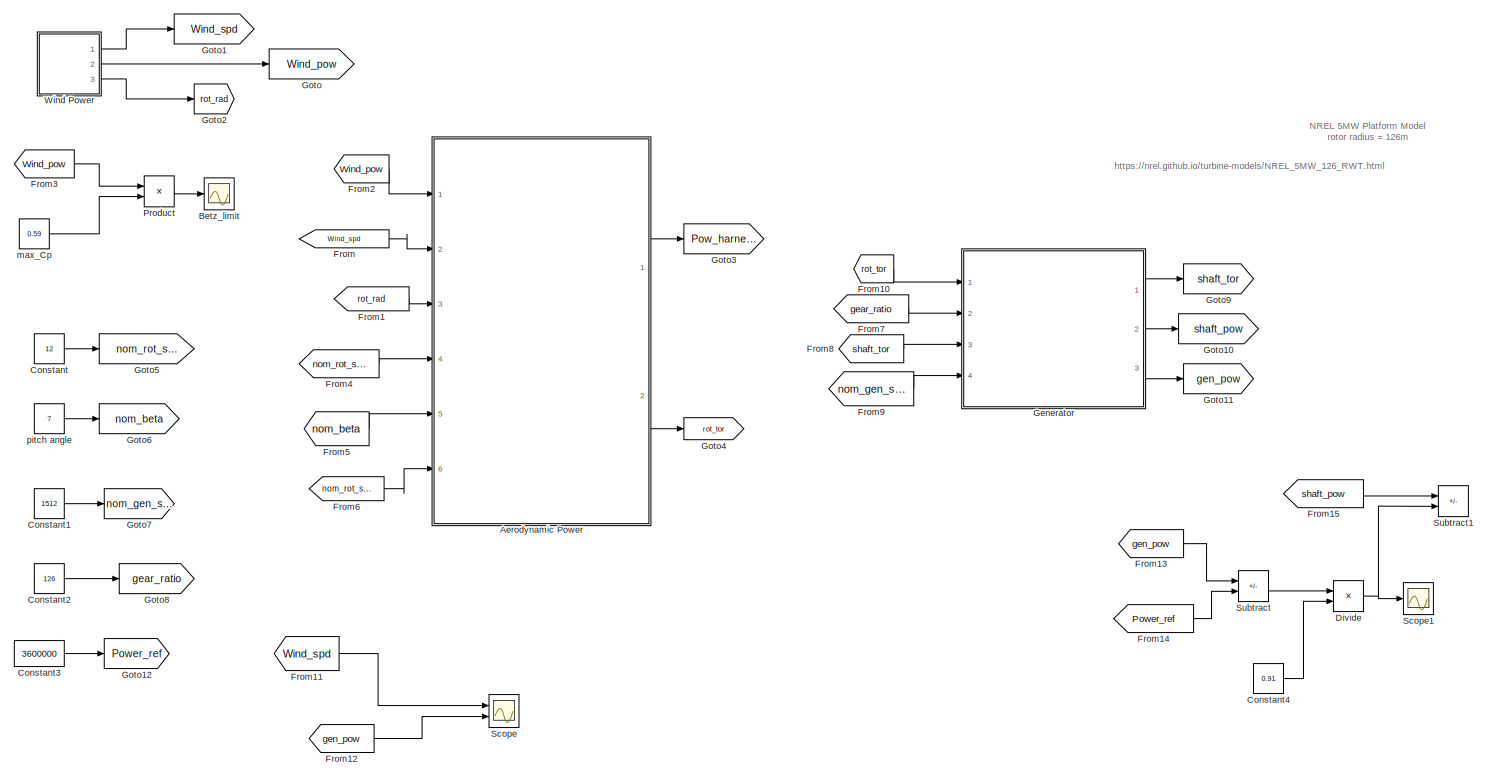
[diagram: root canvas - part 1/1, most of the canvas]
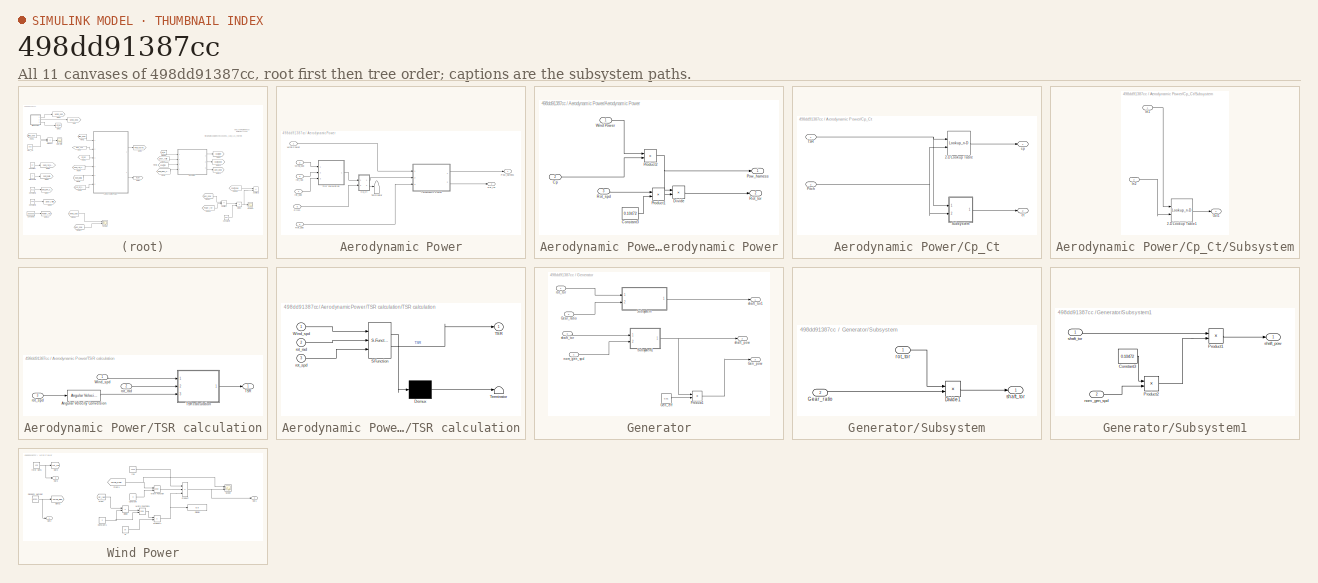
[diagram: thumbnail index - all 11 canvases of the model, root first then tree order]
MODEL slx_498dd91387cc
KIND model
CONFIG AbsTol = auto
CONFIG EnableMultiTasking = off
CONFIG FixedStep = auto
CONFIG MaxStep = auto
CONFIG MinStep = auto
CONFIG RelTol = 1e-3
CONFIG SampleTimeConstraint = Unconstrained
CONFIG SolverName = VariableStepAuto
CONFIG StartTime = 0.0
CONFIG StopTime = 10.0
BLOCK [SubSystem] Aerodynamic Power
  Ports = [6, 2]
  RequestExecContextInheritance = off
BLOCK [SubSystem] Aerodynamic Power/Aerodynamic Power
  Ports = [3, 2]
  RequestExecContextInheritance = off
BLOCK [Constant] Aerodynamic Power/Aerodynamic Power/Constant3
  Value = 0.10472
BLOCK [Inport] Aerodynamic Power/Aerodynamic Power/Cp
  Port = 2
BLOCK [Product] Aerodynamic Power/Aerodynamic Power/Divide
  Inputs = */
  Ports = [2, 1]
BLOCK [Outport] Aerodynamic Power/Aerodynamic Power/Pow_harness
BLOCK [Product] Aerodynamic Power/Aerodynamic Power/Product1
  Ports = [2, 1]
BLOCK [Product] Aerodynamic Power/Aerodynamic Power/Product2
  Ports = [2, 1]
BLOCK [Inport] Aerodynamic Power/Aerodynamic Power/Rot_spd
  Port = 3
BLOCK [Outport] Aerodynamic Power/Aerodynamic Power/Rot_tor
  Port = 2
BLOCK [Inport] Aerodynamic Power/Aerodynamic Power/Wind Power
BLOCK [SubSystem] Aerodynamic Power/Cp_Ct
  Ports = [2, 2]
  RequestExecContextInheritance = off
BLOCK [Lookup_n-D] Aerodynamic Power/Cp_Ct/2-D Lookup Table
  BreakpointsForDimension1 = cCpTabPitchPosBinsV126
  BreakpointsForDimension2 = cCpTabLambdaBinsV126
  InputPortMap = u0,u1
  Ports = [2, 1]
  RndMeth = Simplest
  Table = cCpTabCpDataV126
BLOCK [Inport] Aerodynamic Power/Cp_Ct/Pitch
  Port = 2
BLOCK [SubSystem] Aerodynamic Power/Cp_Ct/Subsystem
  Ports = [2, 1]
  RequestExecContextInheritance = off
BLOCK [Lookup_n-D] Aerodynamic Power/Cp_Ct/Subsystem/2-D Lookup Table1
  BreakpointsForDimension1 = cCtTabPitchPosBinsV126
  BreakpointsForDimension2 = cCtTabLambdaBinsV126
  InputPortMap = u0,u1
  Ports = [2, 1]
  RndMeth = Simplest
  Table = cCtTabCpDataV126
BLOCK [Inport] Aerodynamic Power/Cp_Ct/Subsystem/In1
BLOCK [Inport] Aerodynamic Power/Cp_Ct/Subsystem/In2
  Port = 2
BLOCK [Outport] Aerodynamic Power/Cp_Ct/Subsystem/Out1
BLOCK [Inport] Aerodynamic Power/Cp_Ct/TSR
BLOCK [Outport] Aerodynamic Power/Cp_Ct/cp
BLOCK [Outport] Aerodynamic Power/Cp_Ct/ct
  Port = 2
BLOCK [Inport] Aerodynamic Power/Pitch
  Port = 5
BLOCK [Outport] Aerodynamic Power/Pow_harness
BLOCK [Inport] Aerodynamic Power/Rot_spd
  Port = 6
BLOCK [Outport] Aerodynamic Power/Rot_tor
  Port = 2
BLOCK [SubSystem] Aerodynamic Power/TSR calculation
  Ports = [3, 1]
  RequestExecContextInheritance = off
BLOCK [Reference] Aerodynamic Power/TSR calculation/Angular Velocity Conversion  REF=aerolibconvert2/Angular Velocity
Conversion
  Ports = [1, 1]
  SourceBlock = aerolibconvert2/Angular Velocity\nConversion
  SourceProductBaseCode = AE
  SourceType = Angular Velocity Conversion
BLOCK [Outport] Aerodynamic Power/TSR calculation/TSR
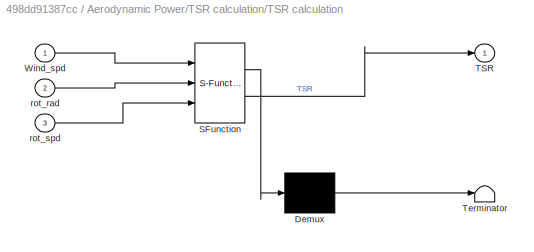
BLOCK [SubSystem] Aerodynamic Power/TSR calculation/TSR calculation
  ErrorFcn = Stateflow.Translate.translate
  PermitHierarchicalResolution = ExplicitOnly
  Ports = [3, 1]
  RequestExecContextInheritance = off
  SFBlockType = MATLAB Function
  TreatAsAtomicUnit = on
BLOCK [Demux] Aerodynamic Power/TSR calculation/TSR calculation/ Demux 
  Outputs = 1
  Ports = [1, 1]
BLOCK [S-Function] Aerodynamic Power/TSR calculation/TSR calculation/ SFunction 
  EnableBusSupport = on
  FunctionName = sf_sfun
  PortCounts = [3 2]
  Ports = [3, 2]
  SFcnIsStateOwnerBlock = off
  SFunctionDeploymentMode = off
  Tag = Stateflow S-Function 2
BLOCK [Terminator] Aerodynamic Power/TSR calculation/TSR calculation/ Terminator 
BLOCK [Outport] Aerodynamic Power/TSR calculation/TSR calculation/TSR
BLOCK [Inport] Aerodynamic Power/TSR calculation/TSR calculation/Wind_spd
BLOCK [Inport] Aerodynamic Power/TSR calculation/TSR calculation/rot_rad
  Port = 2
BLOCK [Inport] Aerodynamic Power/TSR calculation/TSR calculation/rot_spd
  Port = 3
BLOCK [Inport] Aerodynamic Power/TSR calculation/Wind_spd
BLOCK [Inport] Aerodynamic Power/TSR calculation/rot_rad
  Port = 2
BLOCK [Inport] Aerodynamic Power/TSR calculation/rot_spd
  Port = 3
BLOCK [Terminator] Aerodynamic Power/Terminator
BLOCK [Inport] Aerodynamic Power/Wind Power
BLOCK [Inport] Aerodynamic Power/Wind_spd
  Port = 2
BLOCK [Inport] Aerodynamic Power/rot_rad
  Port = 3
BLOCK [Inport] Aerodynamic Power/rot_spd
  Port = 4
BLOCK [Scope] Betz_limit
  Floating = off
  NumInputPorts = 1
  Ports = [1]
  ScopeSpecificationString = Simulink.scopes.TimeScopeBlockCfg('CurrentConfiguration', extmgr.ConfigurationSet(extmgr.Configuration('Core','General UI',true),extmgr.Configuration('Core','Source UI',true),extmgr.Configuration('Sources','WiredSimulink',true,'DataLoggingVariableName','ScopeData1'),extmgr.Configuration('Visuals','Time Domain',true,'SerializedDisplays',{struct('MinYLimReal','2350982.74037','MaxYLimReal','17121868....<+1445ch>
BLOCK [Constant] Constant
  Value = 12
BLOCK [Constant] Constant1
  Value = 1512
BLOCK [Constant] Constant2
  Value = 126
BLOCK [Constant] Constant3
  Value = 3600000
BLOCK [Constant] Constant4
  Value = 0.91
BLOCK [Product] Divide
  Inputs = */
  Ports = [2, 1]
BLOCK [From] From
  GotoTag = Wind_spd
BLOCK [From] From1
  GotoTag = rot_rad
BLOCK [From] From10
  GotoTag = rot_tor
BLOCK [From] From11
  GotoTag = Wind_spd
BLOCK [From] From12
  GotoTag = gen_pow
BLOCK [From] From13
  GotoTag = gen_pow
BLOCK [From] From14
  GotoTag = Power_ref
BLOCK [From] From15
  GotoTag = shaft_pow
BLOCK [From] From2
  GotoTag = Wind_pow
BLOCK [From] From3
  GotoTag = Wind_pow
BLOCK [From] From4
  GotoTag = nom_rot_spd
BLOCK [From] From5
  GotoTag = nom_beta
BLOCK [From] From6
  GotoTag = nom_rot_spd
BLOCK [From] From7
  GotoTag = gear_ratio
BLOCK [From] From8
  GotoTag = shaft_tor
BLOCK [From] From9
  GotoTag = nom_gen_spd
BLOCK [SubSystem] Generator
  Ports = [4, 3]
  RequestExecContextInheritance = off
BLOCK [Inport] Generator/Gear_ratio
  Port = 2
BLOCK [Constant] Generator/Gen_eff
  Value = 0.91
BLOCK [Outport] Generator/Gen_pow
  Port = 3
BLOCK [Product] Generator/Product1
  Ports = [2, 1]
BLOCK [SubSystem] Generator/Subsystem
  Ports = [2, 1]
  RequestExecContextInheritance = off
BLOCK [Product] Generator/Subsystem/Divide1
  Inputs = */
  Ports = [2, 1]
BLOCK [Inport] Generator/Subsystem/Gear_ratio
  Port = 2
BLOCK [Inport] Generator/Subsystem/rot_tor
BLOCK [Outport] Generator/Subsystem/shaft_tor
BLOCK [SubSystem] Generator/Subsystem1
  Ports = [2, 1]
  RequestExecContextInheritance = off
BLOCK [Constant] Generator/Subsystem1/Constant3
  Value = 0.10472
BLOCK [Product] Generator/Subsystem1/Product1
  Ports = [2, 1]
BLOCK [Product] Generator/Subsystem1/Product2
  Ports = [2, 1]
BLOCK [Inport] Generator/Subsystem1/nom_gen_spd
  Port = 2
BLOCK [Outport] Generator/Subsystem1/shaft_pow
BLOCK [Inport] Generator/Subsystem1/shaft_tor
BLOCK [Inport] Generator/nom_gen_spd
  Port = 4
BLOCK [Inport] Generator/rot_tor
BLOCK [Outport] Generator/shaft_pow
  Port = 2
BLOCK [Inport] Generator/shaft_tor
  Port = 3
BLOCK [Outport] Generator/shaft_tor1
BLOCK [Goto] Goto
  GotoTag = Wind_pow
BLOCK [Goto] Goto1
  GotoTag = Wind_spd
BLOCK [Goto] Goto10
  GotoTag = shaft_pow
BLOCK [Goto] Goto11
  GotoTag = gen_pow
BLOCK [Goto] Goto12
  GotoTag = Power_ref
BLOCK [Goto] Goto2
  GotoTag = rot_rad
BLOCK [Goto] Goto3
  GotoTag = Pow_harness
BLOCK [Goto] Goto4
  GotoTag = rot_tor
BLOCK [Goto] Goto5
  GotoTag = nom_rot_spd
BLOCK [Goto] Goto6
  GotoTag = nom_beta
BLOCK [Goto] Goto7
  GotoTag = nom_gen_spd
BLOCK [Goto] Goto8
  GotoTag = gear_ratio
BLOCK [Goto] Goto9
  GotoTag = shaft_tor
BLOCK [Product] Product
  Ports = [2, 1]
BLOCK [Scope] Scope
  Floating = off
  NumInputPorts = 2
  Ports = [2]
  ScopeSpecificationString = Simulink.scopes.TimeScopeBlockCfg('CurrentConfiguration', extmgr.ConfigurationSet(extmgr.Configuration('Core','General UI',true),extmgr.Configuration('Core','Source UI',true),extmgr.Configuration('Sources','WiredSimulink',true,'DataLoggingVariableName','ScopeData1'),extmgr.Configuration('Visuals','Time Domain',true,'SerializedDisplays',{struct('MinYLimReal','6.95449','MaxYLimReal','12.58116','YLab...<+2093ch>
BLOCK [Scope] Scope1
  Floating = off
  NumInputPorts = 1
  Ports = [1]
  ScopeSpecificationString = Simulink.scopes.TimeScopeBlockCfg('CurrentConfiguration', extmgr.ConfigurationSet(extmgr.Configuration('Core','General UI',true),extmgr.Configuration('Core','Source UI',true),extmgr.Configuration('Sources','WiredSimulink',true,'DataLoggingVariableName','ScopeData1'),extmgr.Configuration('Visuals','Time Domain',true,'SerializedDisplays',{struct('MinYLimReal','-3930790.94463','MaxYLimReal','3429835....<+1409ch>
BLOCK [Sum] Subtract
  IconShape = rectangular
  Inputs = +-
  Ports = [2, 1]
BLOCK [Sum] Subtract1
  IconShape = rectangular
  Inputs = +-
  Ports = [2, 1]
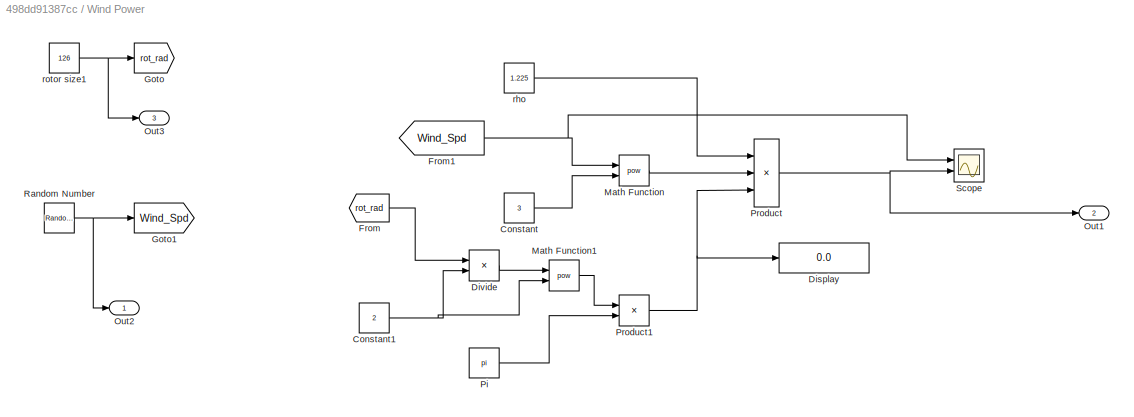
BLOCK [SubSystem] Wind Power
  Ports = [0, 3]
  RequestExecContextInheritance = off
BLOCK [Constant] Wind Power/Constant
  Value = 3
BLOCK [Constant] Wind Power/Constant1
  Value = 2
BLOCK [Display] Wind Power/Display
  Decimation = 1
  Ports = [1]
BLOCK [Product] Wind Power/Divide
  Inputs = */
  Ports = [2, 1]
BLOCK [From] Wind Power/From
  GotoTag = rot_rad
BLOCK [From] Wind Power/From1
  GotoTag = Wind_Spd
BLOCK [Goto] Wind Power/Goto
  GotoTag = rot_rad
BLOCK [Goto] Wind Power/Goto1
  GotoTag = Wind_Spd
BLOCK [Math] Wind Power/Math Function
  Operator = pow
  Ports = [2, 1]
BLOCK [Math] Wind Power/Math Function1
  Operator = pow
  Ports = [2, 1]
BLOCK [Outport] Wind Power/Out1
  Port = 2
BLOCK [Outport] Wind Power/Out2
BLOCK [Outport] Wind Power/Out3
  Port = 3
BLOCK [Constant] Wind Power/Pi
  OutDataTypeStr = Inherit: Inherit via back propagation
  Value = pi
BLOCK [Product] Wind Power/Product
  Inputs = 3
  Ports = [3, 1]
BLOCK [Product] Wind Power/Product1
  Ports = [2, 1]
BLOCK [RandomNumber] Wind Power/Random Number
  Mean = 10
  SampleTime = 0.1
BLOCK [Scope] Wind Power/Scope
  Floating = off
  NumInputPorts = 2
  Ports = [2]
  ScopeSpecificationString = Simulink.scopes.TimeScopeBlockCfg('CurrentConfiguration', extmgr.ConfigurationSet(extmgr.Configuration('Core','General UI',true),extmgr.Configuration('Core','Source UI',true),extmgr.Configuration('Sources','WiredSimulink',true),extmgr.Configuration('Visuals','Time Domain',true,'SerializedDisplays',{struct('MinYLimReal','6.95449','MaxYLimReal','12.58116','YLabelReal','','MinYLimMag','6.95449','MaxY...<+2056ch>
BLOCK [Constant] Wind Power/rho
  Value = 1.225
BLOCK [Constant] Wind Power/rotor size1
  Value = 126
BLOCK [Constant] max_Cp
  Value = 0.59
BLOCK [Constant] pitch angle
  Value = 7
ANNOTATION (root): NREL 5MW Platform Model rotor radius = 126m
ANNOTATION (root): https://nrel.github.io/turbine-models/NREL_5MW_126_RWT.html
LINE Aerodynamic Power/Aerodynamic Power/Constant3:1 -> Aerodynamic Power/Aerodynamic Power/Product1:2
LINE Aerodynamic Power/Aerodynamic Power/Cp:1 -> Aerodynamic Power/Aerodynamic Power/Product2:2
LINE Aerodynamic Power/Aerodynamic Power/Divide:1 -> Aerodynamic Power/Aerodynamic Power/Rot_tor:1
LINE Aerodynamic Power/Aerodynamic Power/Product1:1 -> Aerodynamic Power/Aerodynamic Power/Divide:2
NET Aerodynamic Power/Aerodynamic Power/Product2:1 -> Aerodynamic Power/Aerodynamic Power/Divide:1, Aerodynamic Power/Aerodynamic Power/Pow_harness:1
LINE Aerodynamic Power/Aerodynamic Power/Rot_spd:1 -> Aerodynamic Power/Aerodynamic Power/Product1:1
LINE Aerodynamic Power/Aerodynamic Power/Wind Power:1 -> Aerodynamic Power/Aerodynamic Power/Product2:1
LINE Aerodynamic Power/Aerodynamic Power:1 -> Aerodynamic Power/Pow_harness:1
LINE Aerodynamic Power/Aerodynamic Power:2 -> Aerodynamic Power/Rot_tor:1
LINE Aerodynamic Power/Cp_Ct/2-D Lookup Table:1 -> Aerodynamic Power/Cp_Ct/cp:1
NET Aerodynamic Power/Cp_Ct/Pitch:1 -> Aerodynamic Power/Cp_Ct/2-D Lookup Table:2, Aerodynamic Power/Cp_Ct/Subsystem:2
LINE Aerodynamic Power/Cp_Ct/Subsystem/2-D Lookup Table1:1 -> Aerodynamic Power/Cp_Ct/Subsystem/Out1:1
LINE Aerodynamic Power/Cp_Ct/Subsystem/In1:1 -> Aerodynamic Power/Cp_Ct/Subsystem/2-D Lookup Table1:1
LINE Aerodynamic Power/Cp_Ct/Subsystem/In2:1 -> Aerodynamic Power/Cp_Ct/Subsystem/2-D Lookup Table1:2
LINE Aerodynamic Power/Cp_Ct/Subsystem:1 -> Aerodynamic Power/Cp_Ct/ct:1
NET Aerodynamic Power/Cp_Ct/TSR:1 -> Aerodynamic Power/Cp_Ct/2-D Lookup Table:1, Aerodynamic Power/Cp_Ct/Subsystem:1
LINE Aerodynamic Power/Cp_Ct:1 -> Aerodynamic Power/Aerodynamic Power:2
LINE Aerodynamic Power/Cp_Ct:2 -> Aerodynamic Power/Terminator:1
LINE Aerodynamic Power/Pitch:1 -> Aerodynamic Power/Cp_Ct:2
LINE Aerodynamic Power/Rot_spd:1 -> Aerodynamic Power/Aerodynamic Power:3
LINE Aerodynamic Power/TSR calculation/Angular Velocity Conversion:1 -> Aerodynamic Power/TSR calculation/TSR calculation:3
LINE Aerodynamic Power/TSR calculation/TSR calculation:1 -> Aerodynamic Power/TSR calculation/TSR:1
LINE Aerodynamic Power/TSR calculation/Wind_spd:1 -> Aerodynamic Power/TSR calculation/TSR calculation:1
LINE Aerodynamic Power/TSR calculation/rot_rad:1 -> Aerodynamic Power/TSR calculation/TSR calculation:2
LINE Aerodynamic Power/TSR calculation/rot_spd:1 -> Aerodynamic Power/TSR calculation/Angular Velocity Conversion:1
LINE Aerodynamic Power/TSR calculation:1 -> Aerodynamic Power/Cp_Ct:1
LINE Aerodynamic Power/Wind Power:1 -> Aerodynamic Power/Aerodynamic Power:1
LINE Aerodynamic Power/Wind_spd:1 -> Aerodynamic Power/TSR calculation:1
LINE Aerodynamic Power/rot_rad:1 -> Aerodynamic Power/TSR calculation:2
LINE Aerodynamic Power/rot_spd:1 -> Aerodynamic Power/TSR calculation:3
LINE Aerodynamic Power:1 -> Goto3:1
LINE Aerodynamic Power:2 -> Goto4:1
LINE Constant1:1 -> Goto7:1
LINE Constant2:1 -> Goto8:1
LINE Constant3:1 -> Goto12:1
LINE Constant4:1 -> Divide:2
LINE Constant:1 -> Goto5:1
NET Divide:1 -> Scope1:1, Subtract1:2
LINE From10:1 -> Generator:1
LINE From11:1 -> Scope:1
LINE From12:1 -> Scope:2
LINE From13:1 -> Subtract:1
LINE From14:1 -> Subtract:2
LINE From15:1 -> Subtract1:1
LINE From1:1 -> Aerodynamic Power:3
LINE From2:1 -> Aerodynamic Power:1
LINE From3:1 -> Product:1
LINE From4:1 -> Aerodynamic Power:4
LINE From5:1 -> Aerodynamic Power:5
LINE From6:1 -> Aerodynamic Power:6
LINE From7:1 -> Generator:2
LINE From8:1 -> Generator:3
LINE From9:1 -> Generator:4
LINE From:1 -> Aerodynamic Power:2
LINE Generator/Gear_ratio:1 -> Generator/Subsystem:2
LINE Generator/Gen_eff:1 -> Generator/Product1:2
LINE Generator/Product1:1 -> Generator/Gen_pow:1
LINE Generator/Subsystem/Divide1:1 -> Generator/Subsystem/shaft_tor:1
LINE Generator/Subsystem/Gear_ratio:1 -> Generator/Subsystem/Divide1:2
LINE Generator/Subsystem/rot_tor:1 -> Generator/Subsystem/Divide1:1
LINE Generator/Subsystem1/Constant3:1 -> Generator/Subsystem1/Product2:1
LINE Generator/Subsystem1/Product1:1 -> Generator/Subsystem1/shaft_pow:1
LINE Generator/Subsystem1/Product2:1 -> Generator/Subsystem1/Product1:2
LINE Generator/Subsystem1/nom_gen_spd:1 -> Generator/Subsystem1/Product2:2
LINE Generator/Subsystem1/shaft_tor:1 -> Generator/Subsystem1/Product1:1
NET Generator/Subsystem1:1 -> Generator/Product1:1, Generator/shaft_pow:1
LINE Generator/Subsystem:1 -> Generator/shaft_tor1:1
LINE Generator/nom_gen_spd:1 -> Generator/Subsystem1:2
LINE Generator/rot_tor:1 -> Generator/Subsystem:1
LINE Generator/shaft_tor:1 -> Generator/Subsystem1:1
LINE Generator:1 -> Goto9:1
LINE Generator:2 -> Goto10:1
LINE Generator:3 -> Goto11:1
LINE Product:1 -> Betz_limit:1
LINE Subtract:1 -> Divide:1
NET Wind Power/Constant1:1 -> Wind Power/Divide:2, Wind Power/Math Function1:2
LINE Wind Power/Constant:1 -> Wind Power/Math Function:2
LINE Wind Power/Divide:1 -> Wind Power/Math Function1:1
NET Wind Power/From1:1 -> Wind Power/Math Function:1, Wind Power/Scope:1
LINE Wind Power/From:1 -> Wind Power/Divide:1
LINE Wind Power/Math Function1:1 -> Wind Power/Product1:1
LINE Wind Power/Math Function:1 -> Wind Power/Product:2
LINE Wind Power/Pi:1 -> Wind Power/Product1:2
NET Wind Power/Product1:1 -> Wind Power/Display:1, Wind Power/Product:3
NET Wind Power/Product:1 -> Wind Power/Out1:1, Wind Power/Scope:2
NET Wind Power/Random Number:1 -> Wind Power/Goto1:1, Wind Power/Out2:1
LINE Wind Power/rho:1 -> Wind Power/Product:1
NET Wind Power/rotor size1:1 -> Wind Power/Goto:1, Wind Power/Out3:1
LINE Wind Power:1 -> Goto1:1
LINE Wind Power:2 -> Goto:1
LINE Wind Power:3 -> Goto2:1
LINE max_Cp:1 -> Product:2
LINE pitch angle:1 -> Goto6:1
note: NET lines group one-source signal fan-out (src -> all destinations, sorted); 1:1 wires keep LINE
CHART Aerodynamic Power/TSR calculation/TSR calculation states=1 transitions=1
  STATE_LABEL 'eML_blk_kernel()'
  STATE_LABEL 'SCRIPT:\nfunction TSR = fcn(Wind_spd,rot_rad,rot_spd)\nomega=rot_spd*0.5 %omega => angular velocity\nTSR = omega*rot_rad/Wind_spd; %omega*rot_rad = speed of rotor tip\n'
CHART  states=0 transitions=0
